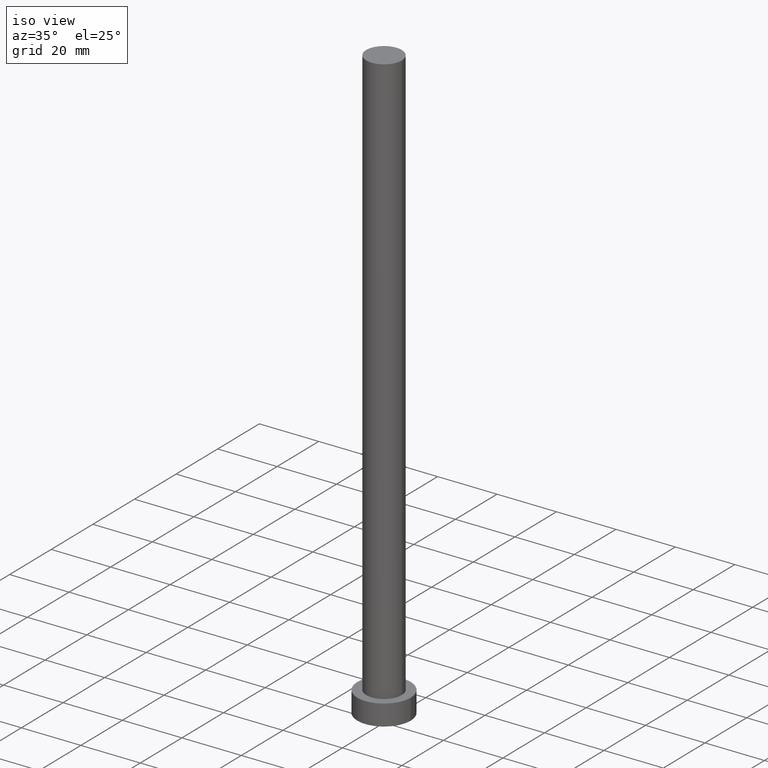
[diagram: clean part render]
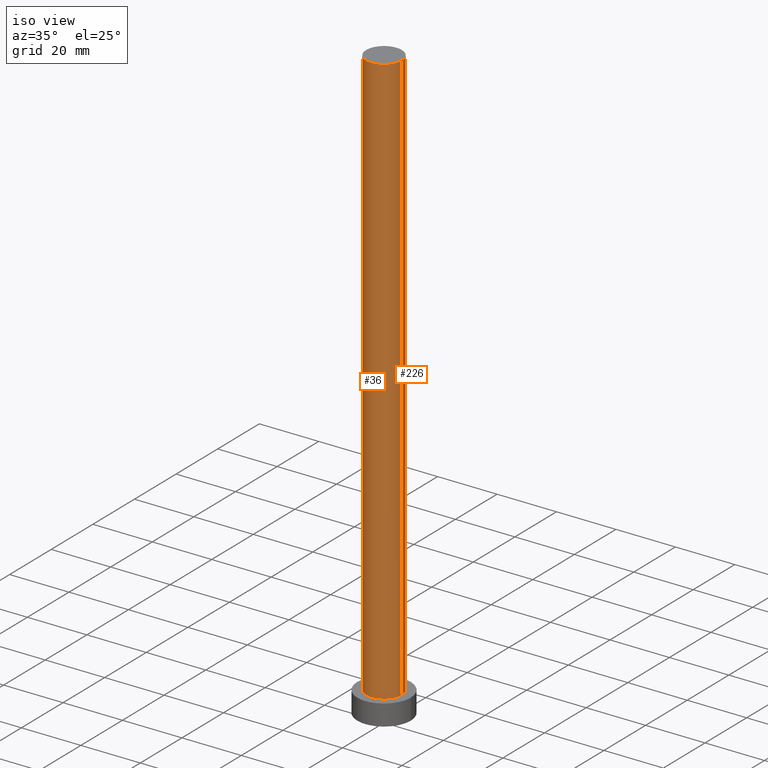
[diagram: same view with one multi-face feature highlighted, each face labeled with its STEP entity id]
A machine part, iso view. The highlighted faces form ONE feature: a constant-radius fillet chain: 2 tangent blend faces with common blend radius 6 mm. The faces share edges in the B-rep.
Their STEP definitions:
[1] entity #226 (Cylinder):
#3 = AXIS2_PLACEMENT_3D ( 'NONE', #233, #62, #126 ) ;
#4 = ORIENTED_EDGE ( 'NONE', *, *, #107, .F. ) ;
#7 = VERTEX_POINT ( 'NONE', #100 ) ;
#10 = CARTESIAN_POINT ( 'NONE',  ( 6.000000000000000888, 7.347880794884120722E-16, 200.0000000000000000 ) ) ;
#14 = LINE ( 'NONE', #10, #130 ) ;
#29 = DIRECTION ( 'NONE',  ( 1.000000000000000000, 0.000000000000000000, 0.000000000000000000 ) ) ;
#39 = CIRCLE ( 'NONE', #116, 6.000000000000000888 ) ;
#43 = EDGE_CURVE ( 'NONE', #7, #115, #39, .T. ) ;
#46 = ORIENTED_EDGE ( 'NONE', *, *, #177, .F. ) ;
#53 = AXIS2_PLACEMENT_3D ( 'NONE', #187, #200, #29 ) ;
#55 = DIRECTION ( 'NONE',  ( 1.000000000000000000, 0.000000000000000000, 0.000000000000000000 ) ) ;
#60 = DIRECTION ( 'NONE',  ( 0.000000000000000000, 0.000000000000000000, 1.000000000000000000 ) ) ;
#62 = DIRECTION ( 'NONE',  ( -0.000000000000000000, -0.000000000000000000, -1.000000000000000000 ) ) ;
#64 = CARTESIAN_POINT ( 'NONE',  ( -6.000000000000000888, 0.000000000000000000, 7.000000000000000000 ) ) ;
#73 = DIRECTION ( 'NONE',  ( -0.000000000000000000, -0.000000000000000000, -1.000000000000000000 ) ) ;
#75 = FACE_OUTER_BOUND ( 'NONE', #171, .T. ) ;
#94 = ORIENTED_EDGE ( 'NONE', *, *, #43, .T. ) ;
#100 = CARTESIAN_POINT ( 'NONE',  ( 6.000000000000000888, 7.347880794884120722E-16, 7.000000000000000000 ) ) ;
#107 = EDGE_CURVE ( 'NONE', #136, #118, #137, .T. ) ;
#115 = VERTEX_POINT ( 'NONE', #64 ) ;
#116 = AXIS2_PLACEMENT_3D ( 'NONE', #224, #60, #55 ) ;
#118 = VERTEX_POINT ( 'NONE', #157 ) ;
#125 = DIRECTION ( 'NONE',  ( -0.000000000000000000, -0.000000000000000000, -1.000000000000000000 ) ) ;
#126 = DIRECTION ( 'NONE',  ( -1.000000000000000000, 0.000000000000000000, 0.000000000000000000 ) ) ;
#130 = VECTOR ( 'NONE', #73, 1000.000000000000000 ) ;
#136 = VERTEX_POINT ( 'NONE', #228 ) ;
#137 = CIRCLE ( 'NONE', #53, 6.000000000000000888 ) ;
#157 = CARTESIAN_POINT ( 'NONE',  ( -6.000000000000000888, 0.000000000000000000, 200.0000000000000000 ) ) ;
#169 = VECTOR ( 'NONE', #125, 1000.000000000000000 ) ;
#171 = EDGE_LOOP ( 'NONE', ( #4, #216, #94, #46 ) ) ;
#177 = EDGE_CURVE ( 'NONE', #118, #115, #208, .T. ) ;
#187 = CARTESIAN_POINT ( 'NONE',  ( 0.000000000000000000, 0.000000000000000000, 200.0000000000000000 ) ) ;
#188 = EDGE_CURVE ( 'NONE', #136, #7, #14, .T. ) ;
#200 = DIRECTION ( 'NONE',  ( 0.000000000000000000, 0.000000000000000000, 1.000000000000000000 ) ) ;
#208 = LINE ( 'NONE', #254, #169 ) ;
#216 = ORIENTED_EDGE ( 'NONE', *, *, #188, .T. ) ;
#224 = CARTESIAN_POINT ( 'NONE',  ( 0.000000000000000000, 0.000000000000000000, 7.000000000000000000 ) ) ;
#226 = ADVANCED_FACE ( 'NONE', ( #75 ), #248, .T. ) ;
#228 = CARTESIAN_POINT ( 'NONE',  ( 6.000000000000000888, 7.347880794884120722E-16, 200.0000000000000000 ) ) ;
#233 = CARTESIAN_POINT ( 'NONE',  ( 0.000000000000000000, 0.000000000000000000, 200.0000000000000000 ) ) ;
#248 = CYLINDRICAL_SURFACE ( 'NONE', #3, 6.000000000000000888 ) ;
#254 = CARTESIAN_POINT ( 'NONE',  ( -6.000000000000000888, 0.000000000000000000, 200.0000000000000000 ) ) ;
[2] entity #36 (Cylinder):
#7 = VERTEX_POINT ( 'NONE', #100 ) ;
#10 = CARTESIAN_POINT ( 'NONE',  ( 6.000000000000000888, 7.347880794884120722E-16, 200.0000000000000000 ) ) ;
#14 = LINE ( 'NONE', #10, #130 ) ;
#16 = CARTESIAN_POINT ( 'NONE',  ( 0.000000000000000000, 0.000000000000000000, 200.0000000000000000 ) ) ;
#18 = AXIS2_PLACEMENT_3D ( 'NONE', #122, #74, #156 ) ;
#21 = EDGE_CURVE ( 'NONE', #115, #7, #48, .T. ) ;
#36 = ADVANCED_FACE ( 'NONE', ( #96 ), #250, .T. ) ;
#48 = CIRCLE ( 'NONE', #82, 6.000000000000000888 ) ;
#64 = CARTESIAN_POINT ( 'NONE',  ( -6.000000000000000888, 0.000000000000000000, 7.000000000000000000 ) ) ;
#72 = CARTESIAN_POINT ( 'NONE',  ( 0.000000000000000000, 0.000000000000000000, 7.000000000000000000 ) ) ;
#73 = DIRECTION ( 'NONE',  ( -0.000000000000000000, -0.000000000000000000, -1.000000000000000000 ) ) ;
#74 = DIRECTION ( 'NONE',  ( -0.000000000000000000, -0.000000000000000000, -1.000000000000000000 ) ) ;
#82 = AXIS2_PLACEMENT_3D ( 'NONE', #72, #141, #174 ) ;
#90 = ORIENTED_EDGE ( 'NONE', *, *, #164, .F. ) ;
#93 = ORIENTED_EDGE ( 'NONE', *, *, #21, .T. ) ;
#96 = FACE_OUTER_BOUND ( 'NONE', #117, .T. ) ;
#100 = CARTESIAN_POINT ( 'NONE',  ( 6.000000000000000888, 7.347880794884120722E-16, 7.000000000000000000 ) ) ;
#115 = VERTEX_POINT ( 'NONE', #64 ) ;
#117 = EDGE_LOOP ( 'NONE', ( #189, #90, #168, #93 ) ) ;
#118 = VERTEX_POINT ( 'NONE', #157 ) ;
#122 = CARTESIAN_POINT ( 'NONE',  ( 0.000000000000000000, 0.000000000000000000, 200.0000000000000000 ) ) ;
#123 = AXIS2_PLACEMENT_3D ( 'NONE', #16, #145, #176 ) ;
#125 = DIRECTION ( 'NONE',  ( -0.000000000000000000, -0.000000000000000000, -1.000000000000000000 ) ) ;
#130 = VECTOR ( 'NONE', #73, 1000.000000000000000 ) ;
#136 = VERTEX_POINT ( 'NONE', #228 ) ;
#141 = DIRECTION ( 'NONE',  ( 0.000000000000000000, 0.000000000000000000, 1.000000000000000000 ) ) ;
#145 = DIRECTION ( 'NONE',  ( 0.000000000000000000, 0.000000000000000000, 1.000000000000000000 ) ) ;
#156 = DIRECTION ( 'NONE',  ( -1.000000000000000000, 0.000000000000000000, 0.000000000000000000 ) ) ;
#157 = CARTESIAN_POINT ( 'NONE',  ( -6.000000000000000888, 0.000000000000000000, 200.0000000000000000 ) ) ;
#164 = EDGE_CURVE ( 'NONE', #118, #136, #218, .T. ) ;
#168 = ORIENTED_EDGE ( 'NONE', *, *, #177, .T. ) ;
#169 = VECTOR ( 'NONE', #125, 1000.000000000000000 ) ;
#174 = DIRECTION ( 'NONE',  ( 1.000000000000000000, 0.000000000000000000, 0.000000000000000000 ) ) ;
#176 = DIRECTION ( 'NONE',  ( 1.000000000000000000, 0.000000000000000000, 0.000000000000000000 ) ) ;
#177 = EDGE_CURVE ( 'NONE', #118, #115, #208, .T. ) ;
#188 = EDGE_CURVE ( 'NONE', #136, #7, #14, .T. ) ;
#189 = ORIENTED_EDGE ( 'NONE', *, *, #188, .F. ) ;
#208 = LINE ( 'NONE', #254, #169 ) ;
#218 = CIRCLE ( 'NONE', #123, 6.000000000000000888 ) ;
#228 = CARTESIAN_POINT ( 'NONE',  ( 6.000000000000000888, 7.347880794884120722E-16, 200.0000000000000000 ) ) ;
#250 = CYLINDRICAL_SURFACE ( 'NONE', #18, 6.000000000000000888 ) ;
#254 = CARTESIAN_POINT ( 'NONE',  ( -6.000000000000000888, 0.000000000000000000, 200.0000000000000000 ) ) ;